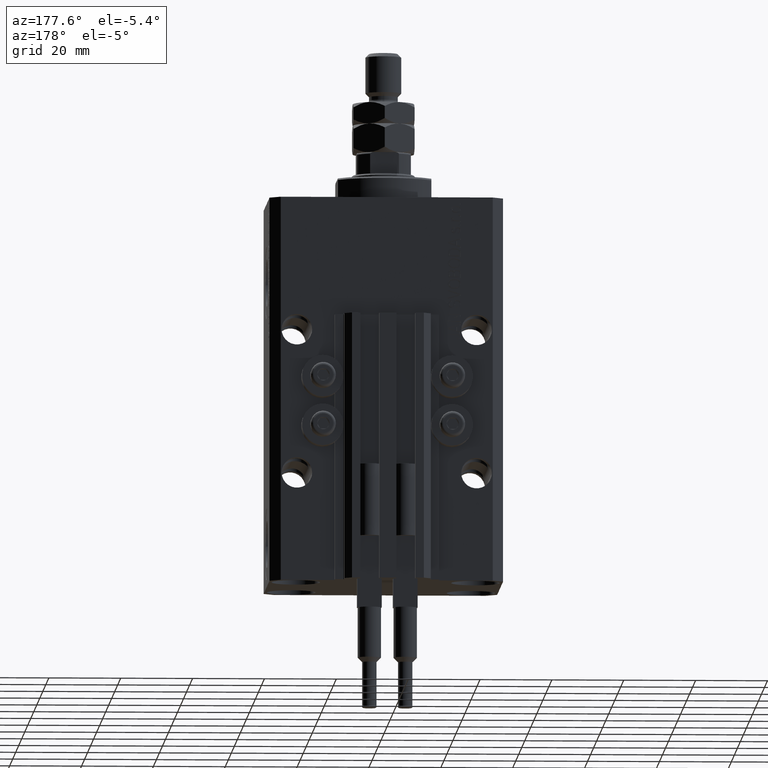
[diagram: clean part render]
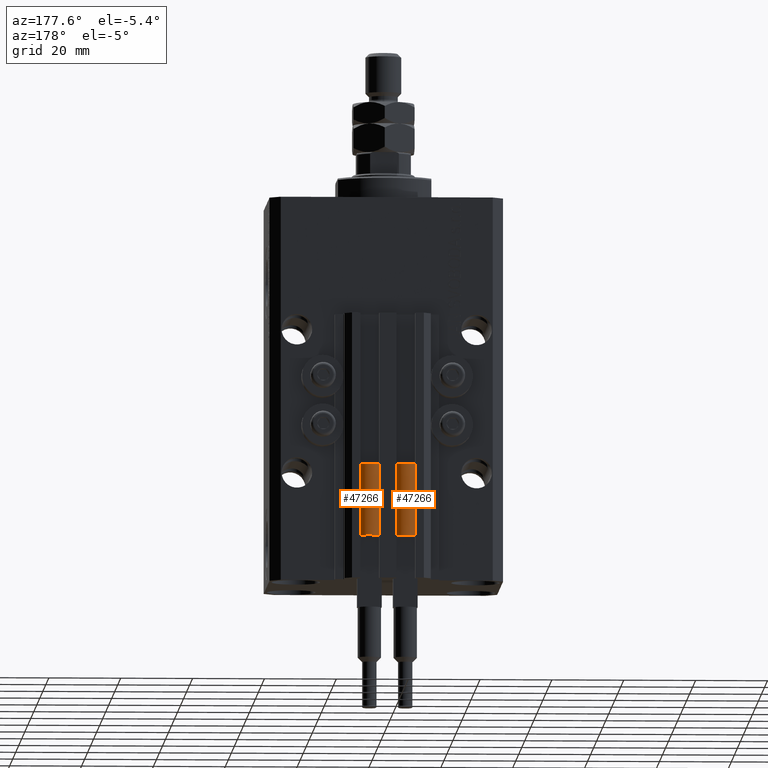
[diagram: same view with one multi-face feature highlighted, each face labeled with its STEP entity id]
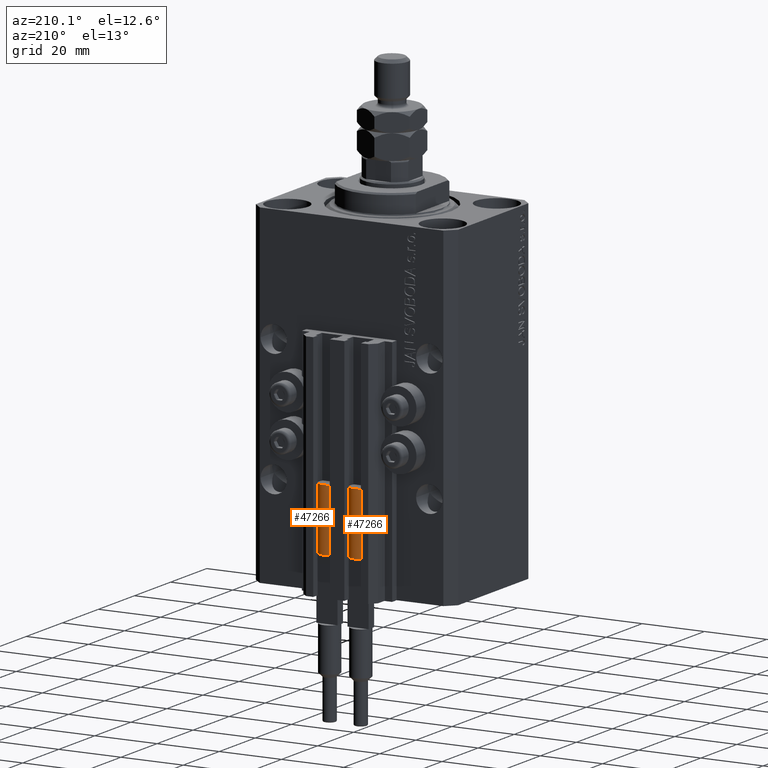
[diagram: same view with one multi-face feature highlighted, each face labeled with its STEP entity id]
A machine part, auxiliary view. The highlighted faces form ONE feature: a constant-radius fillet chain: 2 tangent blend faces with common blend radius 3.4 mm. The faces share edges in the B-rep.
A second angle (auxiliary view) of the same feature is appended — it is thin or edge-on in the first view.
Their STEP definitions:
[1] entity #47266 (Cylinder):
#557 = FACE_OUTER_BOUND ( 'NONE', #49014, .T. ) ;
#1489 = CARTESIAN_POINT ( 'NONE',  ( -3.051229260478471428, 1.500000000000000000, 20.00000000000000000 ) ) ;
#1632 = CARTESIAN_POINT ( 'NONE',  ( 3.400000000000000355, 4.163799117101001052E-16, 0.000000000000000000 ) ) ;
#1754 = VERTEX_POINT ( 'NONE', #1489 ) ;
#1993 = DIRECTION ( 'NONE',  ( 0.000000000000000000, 0.000000000000000000, 1.000000000000000000 ) ) ;
#3613 = DIRECTION ( 'NONE',  ( 1.000000000000000000, 0.000000000000000000, 0.000000000000000000 ) ) ;
#4861 = CARTESIAN_POINT ( 'NONE',  ( 3.400000000000000355, 0.000000000000000000, 20.00000000000000000 ) ) ;
#5941 = CARTESIAN_POINT ( 'NONE',  ( -3.400000000000000355, 0.000000000000000000, 20.00000000000000000 ) ) ;
#6406 = AXIS2_PLACEMENT_3D ( 'NONE', #48251, #9469, #13531 ) ;
#7066 = EDGE_CURVE ( 'NONE', #1754, #34134, #21960, .T. ) ;
#9026 = ORIENTED_EDGE ( 'NONE', *, *, #33782, .F. ) ;
#9122 = CIRCLE ( 'NONE', #22902, 3.400000000000000355 ) ;
#9469 = DIRECTION ( 'NONE',  ( 0.000000000000000000, 0.000000000000000000, 1.000000000000000000 ) ) ;
#10628 = EDGE_CURVE ( 'NONE', #33834, #16625, #9122, .T. ) ;
#11348 = ORIENTED_EDGE ( 'NONE', *, *, #7066, .F. ) ;
#11962 = CARTESIAN_POINT ( 'NONE',  ( -3.399999999999999467, -4.915049848600952119E-16, 20.00000000000000000 ) ) ;
#12274 = AXIS2_PLACEMENT_3D ( 'NONE', #44803, #1993, #40990 ) ;
#12903 = CIRCLE ( 'NONE', #6406, 3.400000000000000355 ) ;
#13109 = VECTOR ( 'NONE', #43769, 1000.000000000000000 ) ;
#13531 = DIRECTION ( 'NONE',  ( 1.000000000000000000, 0.000000000000000000, 0.000000000000000000 ) ) ;
#13792 = LINE ( 'NONE', #5941, #13109 ) ;
#14760 = DIRECTION ( 'NONE',  ( 0.000000000000000000, 0.000000000000000000, 1.000000000000000000 ) ) ;
#15487 = DIRECTION ( 'NONE',  ( 1.000000000000000000, 0.000000000000000000, 0.000000000000000000 ) ) ;
#16625 = VERTEX_POINT ( 'NONE', #16640 ) ;
#16640 = CARTESIAN_POINT ( 'NONE',  ( -3.400000000000000355, 0.000000000000000000, 0.000000000000000000 ) ) ;
#16674 = DIRECTION ( 'NONE',  ( -0.000000000000000000, -0.000000000000000000, -1.000000000000000000 ) ) ;
#17167 = VECTOR ( 'NONE', #16674, 1000.000000000000000 ) ;
#21960 = CIRCLE ( 'NONE', #12274, 3.400000000000000355 ) ;
#22299 = CARTESIAN_POINT ( 'NONE',  ( 3.051229260478471428, 1.500000000000000000, 20.00000000000000000 ) ) ;
#22659 = ORIENTED_EDGE ( 'NONE', *, *, #10628, .T. ) ;
#22902 = AXIS2_PLACEMENT_3D ( 'NONE', #49227, #14760, #3613 ) ;
#23630 = DIRECTION ( 'NONE',  ( -1.000000000000000000, 0.000000000000000000, 0.000000000000000000 ) ) ;
#28446 = DIRECTION ( 'NONE',  ( -0.000000000000000000, -0.000000000000000000, -1.000000000000000000 ) ) ;
#33399 = AXIS2_PLACEMENT_3D ( 'NONE', #35549, #28446, #23630 ) ;
#33782 = EDGE_CURVE ( 'NONE', #37325, #50167, #12903, .T. ) ;
#33834 = VERTEX_POINT ( 'NONE', #1632 ) ;
#34134 = VERTEX_POINT ( 'NONE', #11962 ) ;
#34309 = ORIENTED_EDGE ( 'NONE', *, *, #40224, .F. ) ;
#35549 = CARTESIAN_POINT ( 'NONE',  ( 0.000000000000000000, 0.000000000000000000, 20.00000000000000000 ) ) ;
#35635 = CIRCLE ( 'NONE', #37246, 3.400000000000000355 ) ;
#36465 = EDGE_CURVE ( 'NONE', #50167, #1754, #35635, .T. ) ;
#37246 = AXIS2_PLACEMENT_3D ( 'NONE', #43623, #46655, #15487 ) ;
#37325 = VERTEX_POINT ( 'NONE', #4861 ) ;
#37877 = ORIENTED_EDGE ( 'NONE', *, *, #36465, .F. ) ;
#40224 = EDGE_CURVE ( 'NONE', #34134, #16625, #13792, .T. ) ;
#40228 = EDGE_CURVE ( 'NONE', #37325, #33834, #47573, .T. ) ;
#40990 = DIRECTION ( 'NONE',  ( 1.000000000000000000, 0.000000000000000000, 0.000000000000000000 ) ) ;
#41393 = CARTESIAN_POINT ( 'NONE',  ( 3.400000000000000355, 4.163799117101001052E-16, 20.00000000000000000 ) ) ;
#42274 = ORIENTED_EDGE ( 'NONE', *, *, #40228, .T. ) ;
#43623 = CARTESIAN_POINT ( 'NONE',  ( 0.000000000000000000, 0.000000000000000000, 20.00000000000000000 ) ) ;
#43769 = DIRECTION ( 'NONE',  ( -0.000000000000000000, -0.000000000000000000, -1.000000000000000000 ) ) ;
#44803 = CARTESIAN_POINT ( 'NONE',  ( 0.000000000000000000, 0.000000000000000000, 20.00000000000000000 ) ) ;
#46655 = DIRECTION ( 'NONE',  ( 0.000000000000000000, 0.000000000000000000, 1.000000000000000000 ) ) ;
#47190 = CYLINDRICAL_SURFACE ( 'NONE', #33399, 3.400000000000000355 ) ;
#47266 = ADVANCED_FACE ( 'NONE', ( #557 ), #47190, .T. ) ;
#47573 = LINE ( 'NONE', #41393, #17167 ) ;
#48251 = CARTESIAN_POINT ( 'NONE',  ( 0.000000000000000000, 0.000000000000000000, 20.00000000000000000 ) ) ;
#49014 = EDGE_LOOP ( 'NONE', ( #9026, #42274, #22659, #34309, #11348, #37877 ) ) ;
#49227 = CARTESIAN_POINT ( 'NONE',  ( 0.000000000000000000, 0.000000000000000000, 0.000000000000000000 ) ) ;
#50167 = VERTEX_POINT ( 'NONE', #22299 ) ;
[2] entity #47266 (Cylinder):
#557 = FACE_OUTER_BOUND ( 'NONE', #49014, .T. ) ;
#1489 = CARTESIAN_POINT ( 'NONE',  ( -3.051229260478471428, 1.500000000000000000, 20.00000000000000000 ) ) ;
#1632 = CARTESIAN_POINT ( 'NONE',  ( 3.400000000000000355, 4.163799117101001052E-16, 0.000000000000000000 ) ) ;
#1754 = VERTEX_POINT ( 'NONE', #1489 ) ;
#1993 = DIRECTION ( 'NONE',  ( 0.000000000000000000, 0.000000000000000000, 1.000000000000000000 ) ) ;
#3613 = DIRECTION ( 'NONE',  ( 1.000000000000000000, 0.000000000000000000, 0.000000000000000000 ) ) ;
#4861 = CARTESIAN_POINT ( 'NONE',  ( 3.400000000000000355, 0.000000000000000000, 20.00000000000000000 ) ) ;
#5941 = CARTESIAN_POINT ( 'NONE',  ( -3.400000000000000355, 0.000000000000000000, 20.00000000000000000 ) ) ;
#6406 = AXIS2_PLACEMENT_3D ( 'NONE', #48251, #9469, #13531 ) ;
#7066 = EDGE_CURVE ( 'NONE', #1754, #34134, #21960, .T. ) ;
#9026 = ORIENTED_EDGE ( 'NONE', *, *, #33782, .F. ) ;
#9122 = CIRCLE ( 'NONE', #22902, 3.400000000000000355 ) ;
#9469 = DIRECTION ( 'NONE',  ( 0.000000000000000000, 0.000000000000000000, 1.000000000000000000 ) ) ;
#10628 = EDGE_CURVE ( 'NONE', #33834, #16625, #9122, .T. ) ;
#11348 = ORIENTED_EDGE ( 'NONE', *, *, #7066, .F. ) ;
#11962 = CARTESIAN_POINT ( 'NONE',  ( -3.399999999999999467, -4.915049848600952119E-16, 20.00000000000000000 ) ) ;
#12274 = AXIS2_PLACEMENT_3D ( 'NONE', #44803, #1993, #40990 ) ;
#12903 = CIRCLE ( 'NONE', #6406, 3.400000000000000355 ) ;
#13109 = VECTOR ( 'NONE', #43769, 1000.000000000000000 ) ;
#13531 = DIRECTION ( 'NONE',  ( 1.000000000000000000, 0.000000000000000000, 0.000000000000000000 ) ) ;
#13792 = LINE ( 'NONE', #5941, #13109 ) ;
#14760 = DIRECTION ( 'NONE',  ( 0.000000000000000000, 0.000000000000000000, 1.000000000000000000 ) ) ;
#15487 = DIRECTION ( 'NONE',  ( 1.000000000000000000, 0.000000000000000000, 0.000000000000000000 ) ) ;
#16625 = VERTEX_POINT ( 'NONE', #16640 ) ;
#16640 = CARTESIAN_POINT ( 'NONE',  ( -3.400000000000000355, 0.000000000000000000, 0.000000000000000000 ) ) ;
#16674 = DIRECTION ( 'NONE',  ( -0.000000000000000000, -0.000000000000000000, -1.000000000000000000 ) ) ;
#17167 = VECTOR ( 'NONE', #16674, 1000.000000000000000 ) ;
#21960 = CIRCLE ( 'NONE', #12274, 3.400000000000000355 ) ;
#22299 = CARTESIAN_POINT ( 'NONE',  ( 3.051229260478471428, 1.500000000000000000, 20.00000000000000000 ) ) ;
#22659 = ORIENTED_EDGE ( 'NONE', *, *, #10628, .T. ) ;
#22902 = AXIS2_PLACEMENT_3D ( 'NONE', #49227, #14760, #3613 ) ;
#23630 = DIRECTION ( 'NONE',  ( -1.000000000000000000, 0.000000000000000000, 0.000000000000000000 ) ) ;
#28446 = DIRECTION ( 'NONE',  ( -0.000000000000000000, -0.000000000000000000, -1.000000000000000000 ) ) ;
#33399 = AXIS2_PLACEMENT_3D ( 'NONE', #35549, #28446, #23630 ) ;
#33782 = EDGE_CURVE ( 'NONE', #37325, #50167, #12903, .T. ) ;
#33834 = VERTEX_POINT ( 'NONE', #1632 ) ;
#34134 = VERTEX_POINT ( 'NONE', #11962 ) ;
#34309 = ORIENTED_EDGE ( 'NONE', *, *, #40224, .F. ) ;
#35549 = CARTESIAN_POINT ( 'NONE',  ( 0.000000000000000000, 0.000000000000000000, 20.00000000000000000 ) ) ;
#35635 = CIRCLE ( 'NONE', #37246, 3.400000000000000355 ) ;
#36465 = EDGE_CURVE ( 'NONE', #50167, #1754, #35635, .T. ) ;
#37246 = AXIS2_PLACEMENT_3D ( 'NONE', #43623, #46655, #15487 ) ;
#37325 = VERTEX_POINT ( 'NONE', #4861 ) ;
#37877 = ORIENTED_EDGE ( 'NONE', *, *, #36465, .F. ) ;
#40224 = EDGE_CURVE ( 'NONE', #34134, #16625, #13792, .T. ) ;
#40228 = EDGE_CURVE ( 'NONE', #37325, #33834, #47573, .T. ) ;
#40990 = DIRECTION ( 'NONE',  ( 1.000000000000000000, 0.000000000000000000, 0.000000000000000000 ) ) ;
#41393 = CARTESIAN_POINT ( 'NONE',  ( 3.400000000000000355, 4.163799117101001052E-16, 20.00000000000000000 ) ) ;
#42274 = ORIENTED_EDGE ( 'NONE', *, *, #40228, .T. ) ;
#43623 = CARTESIAN_POINT ( 'NONE',  ( 0.000000000000000000, 0.000000000000000000, 20.00000000000000000 ) ) ;
#43769 = DIRECTION ( 'NONE',  ( -0.000000000000000000, -0.000000000000000000, -1.000000000000000000 ) ) ;
#44803 = CARTESIAN_POINT ( 'NONE',  ( 0.000000000000000000, 0.000000000000000000, 20.00000000000000000 ) ) ;
#46655 = DIRECTION ( 'NONE',  ( 0.000000000000000000, 0.000000000000000000, 1.000000000000000000 ) ) ;
#47190 = CYLINDRICAL_SURFACE ( 'NONE', #33399, 3.400000000000000355 ) ;
#47266 = ADVANCED_FACE ( 'NONE', ( #557 ), #47190, .T. ) ;
#47573 = LINE ( 'NONE', #41393, #17167 ) ;
#48251 = CARTESIAN_POINT ( 'NONE',  ( 0.000000000000000000, 0.000000000000000000, 20.00000000000000000 ) ) ;
#49014 = EDGE_LOOP ( 'NONE', ( #9026, #42274, #22659, #34309, #11348, #37877 ) ) ;
#49227 = CARTESIAN_POINT ( 'NONE',  ( 0.000000000000000000, 0.000000000000000000, 0.000000000000000000 ) ) ;
#50167 = VERTEX_POINT ( 'NONE', #22299 ) ;